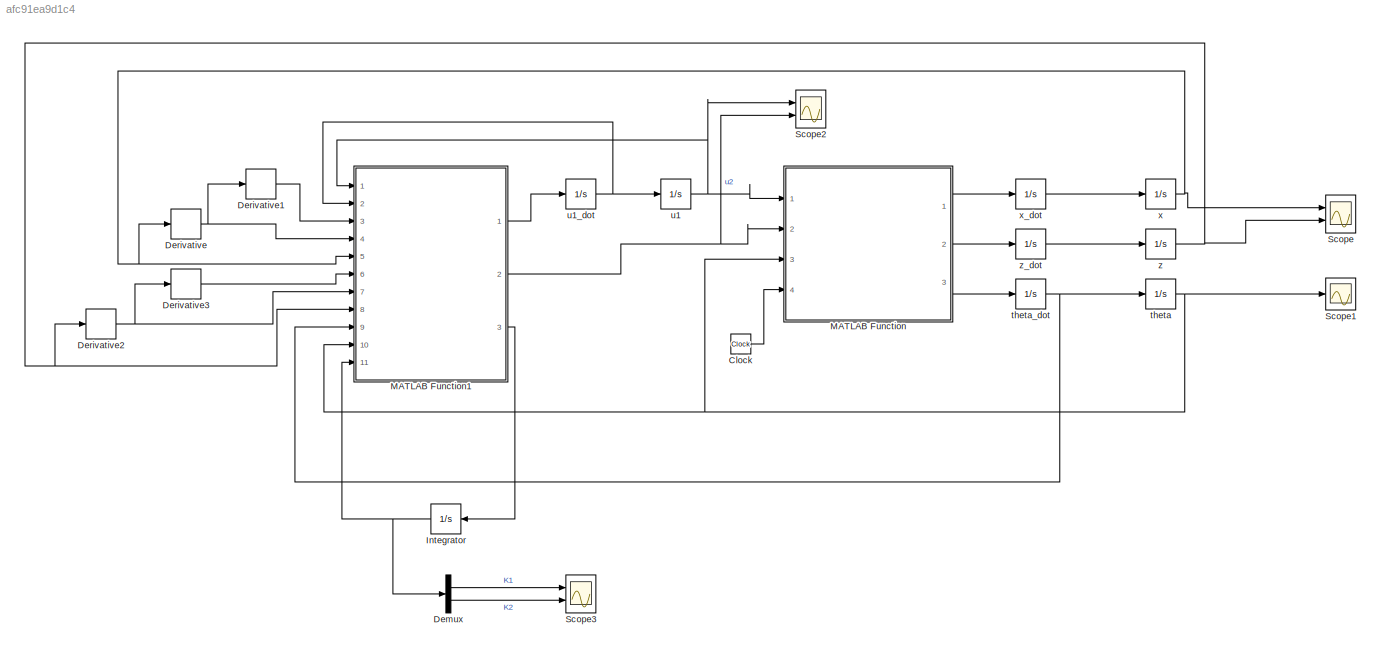
MODEL slx_afc91ea9d1c4
KIND model
CONFIG AbsTol = auto
CONFIG EnableMultiTasking = off
CONFIG FixedStep = 0.0001
CONFIG MaxStep = auto
CONFIG MinStep = auto
CONFIG RelTol = 1e-3
CONFIG SampleTimeConstraint = Unconstrained
CONFIG Solver = FixedStepAuto
CONFIG SolverName = FixedStepAuto
CONFIG StartTime = 0.0
CONFIG StopTime = 50
BLOCK [Clock] Clock
  Decimation = 100
BLOCK [Demux] Demux
  DisplayOption = bar
  Outputs = 2
  Ports = [1, 2]
BLOCK [Derivative] Derivative
BLOCK [Derivative] Derivative1
BLOCK [Derivative] Derivative2
BLOCK [Derivative] Derivative3
BLOCK [Integrator] Integrator
  InitialCondition = [1;1]
  Ports = [1, 1]
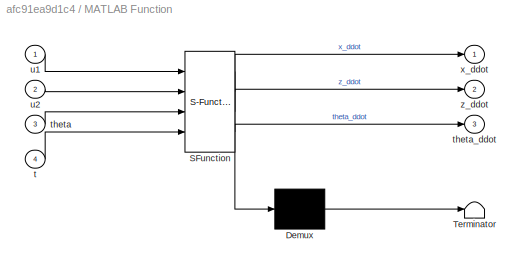
BLOCK [SubSystem] MATLAB Function
  ErrorFcn = Stateflow.Translate.translate
  PermitHierarchicalResolution = ExplicitOnly
  Ports = [4, 3]
  RequestExecContextInheritance = off
  SFBlockType = MATLAB Function
  TreatAsAtomicUnit = on
  Variant = off
BLOCK [Demux] MATLAB Function/ Demux 
  Outputs = 1
  Ports = [1, 1]
BLOCK [S-Function] MATLAB Function/ SFunction 
  EnableBusSupport = on
  FunctionName = sf_sfun
  PortCounts = [4 4]
  Ports = [4, 4]
  SFcnIsStateOwnerBlock = off
  SFunctionDeploymentMode = off
  Tag = Stateflow S-Function system4 2
BLOCK [Terminator] MATLAB Function/ Terminator 
BLOCK [Inport] MATLAB Function/t
  IconDisplay = Port number
  Port = 4
BLOCK [Inport] MATLAB Function/theta
  IconDisplay = Port number
  Port = 3
BLOCK [Outport] MATLAB Function/theta_ddot
  IconDisplay = Port number
  Port = 3
BLOCK [Inport] MATLAB Function/u1
  IconDisplay = Port number
BLOCK [Inport] MATLAB Function/u2
  IconDisplay = Port number
  Port = 2
BLOCK [Outport] MATLAB Function/x_ddot
  IconDisplay = Port number
BLOCK [Outport] MATLAB Function/z_ddot
  IconDisplay = Port number
  Port = 2
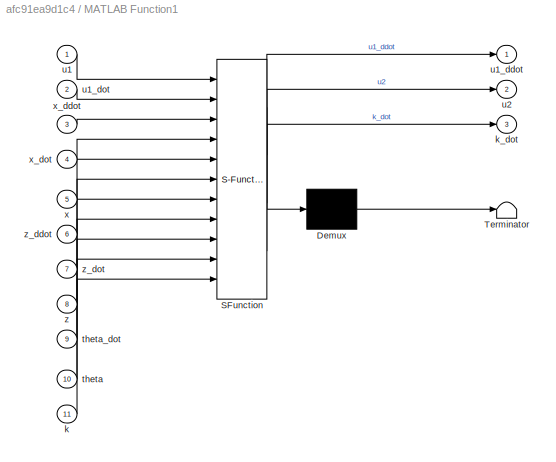
BLOCK [SubSystem] MATLAB Function1
  ErrorFcn = Stateflow.Translate.translate
  PermitHierarchicalResolution = ExplicitOnly
  Ports = [11, 3]
  RequestExecContextInheritance = off
  SFBlockType = MATLAB Function
  TreatAsAtomicUnit = on
  Variant = off
BLOCK [Demux] MATLAB Function1/ Demux 
  Outputs = 1
  Ports = [1, 1]
BLOCK [S-Function] MATLAB Function1/ SFunction 
  EnableBusSupport = on
  FunctionName = sf_sfun
  PortCounts = [11 4]
  Ports = [11, 4]
  SFcnIsStateOwnerBlock = off
  SFunctionDeploymentMode = off
  Tag = Stateflow S-Function system4 1
BLOCK [Terminator] MATLAB Function1/ Terminator 
BLOCK [Inport] MATLAB Function1/k
  IconDisplay = Port number
  Port = 11
BLOCK [Outport] MATLAB Function1/k_dot
  IconDisplay = Port number
  Port = 3
BLOCK [Inport] MATLAB Function1/theta
  IconDisplay = Port number
  Port = 10
BLOCK [Inport] MATLAB Function1/theta_dot
  IconDisplay = Port number
  Port = 9
BLOCK [Inport] MATLAB Function1/u1
  IconDisplay = Port number
BLOCK [Outport] MATLAB Function1/u1_ddot
  IconDisplay = Port number
BLOCK [Inport] MATLAB Function1/u1_dot
  IconDisplay = Port number
  Port = 2
BLOCK [Outport] MATLAB Function1/u2
  IconDisplay = Port number
  Port = 2
BLOCK [Inport] MATLAB Function1/x
  IconDisplay = Port number
  Port = 5
BLOCK [Inport] MATLAB Function1/x_ddot
  IconDisplay = Port number
  Port = 3
BLOCK [Inport] MATLAB Function1/x_dot
  IconDisplay = Port number
  Port = 4
BLOCK [Inport] MATLAB Function1/z
  IconDisplay = Port number
  Port = 8
BLOCK [Inport] MATLAB Function1/z_ddot
  IconDisplay = Port number
  Port = 6
BLOCK [Inport] MATLAB Function1/z_dot
  IconDisplay = Port number
  Port = 7
BLOCK [Scope] Scope
  NumInputPorts = 2
  Ports = [2]
  ScopeSpecificationString = Simulink.scopes.TimeScopeBlockCfg('CurrentConfiguration', extmgr.ConfigurationSet(extmgr.Configuration('Core','General UI',true,'FigureColor',[1 1 1]),extmgr.Configuration('Core','Source UI',true),extmgr.Configuration('Sources','WiredSimulink',true,'DataLoggingVariableName','ScopeData1'),extmgr.Configuration('Visuals','Time Domain',true,'SerializedDisplays',{struct('MinYLimReal','-0.46492','MaxYLi...<+1555ch>
BLOCK [Scope] Scope1
  NumInputPorts = 1
  Ports = [1]
  ScopeSpecificationString = Simulink.scopes.TimeScopeBlockCfg('CurrentConfiguration', extmgr.ConfigurationSet(extmgr.Configuration('Core','General UI',true,'FigureColor',[1 1 1]),extmgr.Configuration('Core','Source UI',true),extmgr.Configuration('Sources','WiredSimulink',true,'DataLoggingVariableName','ScopeData2'),extmgr.Configuration('Visuals','Time Domain',true,'SerializedDisplays',{struct('MinYLimReal','-0.34855','MaxYLi...<+1505ch>
BLOCK [Scope] Scope2
  NumInputPorts = 2
  Ports = [2]
  ScopeSpecificationString = Simulink.scopes.TimeScopeBlockCfg('CurrentConfiguration', extmgr.ConfigurationSet(extmgr.Configuration('Core','General UI',true,'FigureColor',[1 1 1]),extmgr.Configuration('Core','Source UI',true),extmgr.Configuration('Sources','WiredSimulink',true),extmgr.Configuration('Visuals','Time Domain',true,'SerializedDisplays',{struct('MinYLimReal','-242.09924','MaxYLimReal','222.93358','YLabelReal','','M...<+1532ch>
BLOCK [Scope] Scope3
  NumInputPorts = 2
  Ports = [2]
  ScopeSpecificationString = Simulink.scopes.TimeScopeBlockCfg('CurrentConfiguration', extmgr.ConfigurationSet(extmgr.Configuration('Core','General UI',true,'FigureColor',[1 1 1]),extmgr.Configuration('Core','Source UI',true),extmgr.Configuration('Sources','WiredSimulink',true,'DataLoggingVariableName','ScopeData1'),extmgr.Configuration('Visuals','Time Domain',true,'SerializedDisplays',{struct('MinYLimReal','-121.27282','MaxY...<+1439ch>
BLOCK [Integrator] theta
  InitialCondition = pi/4
  Ports = [1, 1]
BLOCK [Integrator] theta_dot
  Ports = [1, 1]
BLOCK [Integrator] u1
  InitialCondition = 1
  Ports = [1, 1]
BLOCK [Integrator] u1_dot
  Ports = [1, 1]
BLOCK [Integrator] x
  InitialCondition = 2
  Ports = [1, 1]
BLOCK [Integrator] x_dot
  Ports = [1, 1]
BLOCK [Integrator] z
  InitialCondition = 3
  Ports = [1, 1]
BLOCK [Integrator] z_dot
  Ports = [1, 1]
LINE Clock:1 -> MATLAB Function:4
LINE Demux:1 -> Scope3:1
LINE Demux:2 -> Scope3:2
LINE Derivative1:1 -> MATLAB Function1:3
NET Derivative2:1 -> Derivative3:1, MATLAB Function1:7
LINE Derivative3:1 -> MATLAB Function1:6
NET Derivative:1 -> Derivative1:1, MATLAB Function1:4
NET Integrator:1 -> Demux:1, MATLAB Function1:11
LINE MATLAB Function1:1 -> u1_dot:1
NET MATLAB Function1:2 -> MATLAB Function:2, Scope2:2
LINE MATLAB Function1:3 -> Integrator:1
LINE MATLAB Function:1 -> x_dot:1
LINE MATLAB Function:2 -> z_dot:1
LINE MATLAB Function:3 -> theta_dot:1
NET theta:1 -> MATLAB Function1:10, MATLAB Function:3, Scope1:1
NET theta_dot:1 -> MATLAB Function1:9, theta:1
NET u1:1 -> MATLAB Function1:1, MATLAB Function:1, Scope2:1
NET u1_dot:1 -> MATLAB Function1:2, u1:1
NET x:1 -> Derivative:1, MATLAB Function1:5, Scope:1
LINE x_dot:1 -> x:1
NET z:1 -> Derivative2:1, MATLAB Function1:8, Scope:2
LINE z_dot:1 -> z:1
note: NET lines group one-source signal fan-out (src -> all destinations, sorted); 1:1 wires keep LINE
CHART MATLAB Function1 states=1 transitions=1
  STATE_LABEL 'eML_blk_kernel()'
  STATE_LABEL 'SCRIPT:\nfunction [u1_ddot, u2, k_dot] = adaptiveSlidingControl(u1, u1_dot, x_ddot, x_dot, x, z_ddot, z_dot, z, theta_dot, theta, k)\n%gains\nc1 = 3;\nc2 = 3;\nc3 = 1;\n\nkbar = [300;300];\nn = [0.3;0.3];\nu = [0.001;0.001];\n\n% state\nx_3dot = -u1_dot*sin(theta) - u1*theta_dot*cos(theta);\n\nz_3dot = u1_dot*cos(theta) - u1*theta_dot*sin(theta);\n\n%sliding variable\n\ns = [x_3dot+c1*x_ddot+c2*x_dot+c3*x;\n    z_3d...<+521ch>'
CHART MATLAB Function states=1 transitions=1
  STATE_LABEL 'eML_blk_kernel()'
  STATE_LABEL 'SCRIPT:\nfunction [x_ddot, z_ddot, theta_ddot] = system(u1,u2,theta, t)\n\nx_ddot = -sin(theta)*u1;\nz_ddot = cos(theta)*u1 - 1;\ntheta_ddot = u2+200*sin(t);\n'
